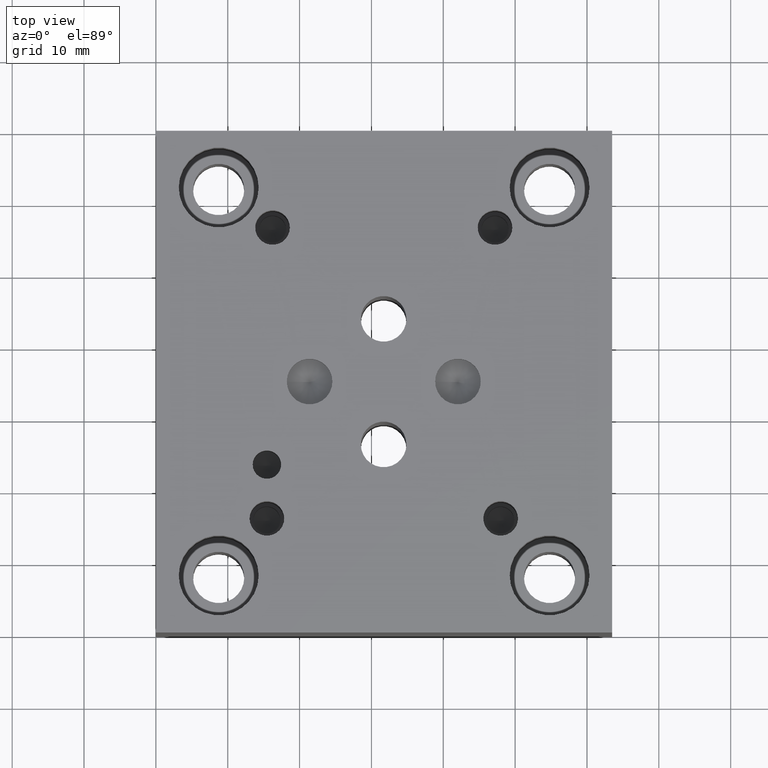
[diagram: clean part render]
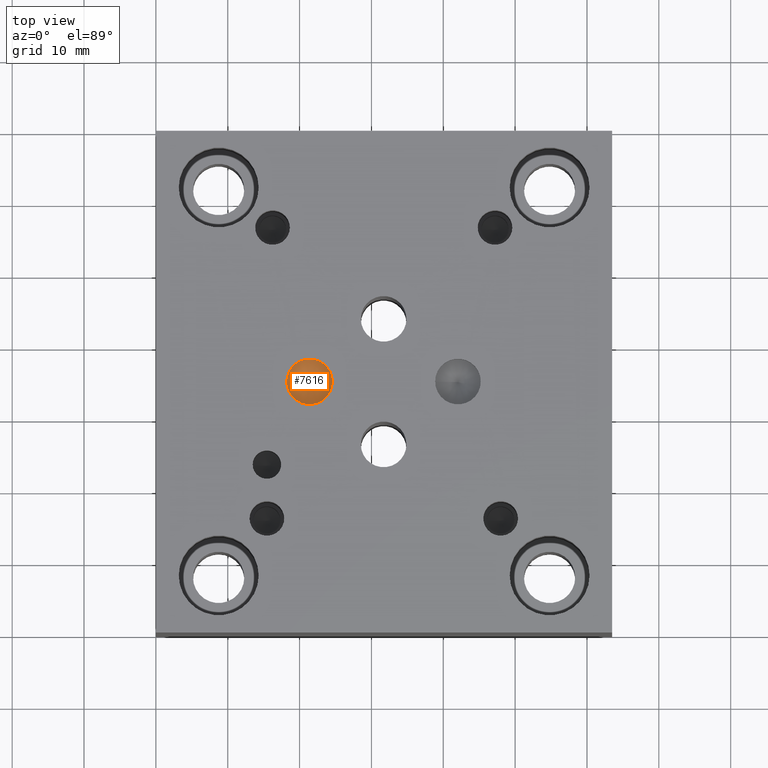
[diagram: same view with one face highlighted and labeled with its STEP entity id]
A machine part, top view. The second image highlights one B-rep face of the part: STEP entity #7616.
In plain terms, the highlighted conical surface has half-angle 60 deg.
Its self-contained STEP definition (entity closure, byte-faithful):
#93=CIRCLE('',#7982,3.175);
#122=CONICAL_SURFACE('',#7981,1.5875,1.0471975511966);
#851=FACE_OUTER_BOUND('',#1295,.T.);
#1295=EDGE_LOOP('',(#6567,#6568,#6569));
#2087=LINE('',#12876,#2858);
#2858=VECTOR('',#9426,1.5875);
#3542=VERTEX_POINT('',#12873);
#3543=VERTEX_POINT('',#12875);
#4561=EDGE_CURVE('',#3542,#3542,#93,.T.);
#4562=EDGE_CURVE('',#3542,#3543,#2087,.T.);
#6567=ORIENTED_EDGE('',*,*,#4561,.T.);
#6568=ORIENTED_EDGE('',*,*,#4562,.T.);
#6569=ORIENTED_EDGE('',*,*,#4562,.F.);
#7616=ADVANCED_FACE('',(#851),#122,.F.);
#7981=AXIS2_PLACEMENT_3D('',#12872,#9422,#9423);
#7982=AXIS2_PLACEMENT_3D('',#12874,#9424,#9425);
#9422=DIRECTION('center_axis',(0.,0.,1.));
#9423=DIRECTION('ref_axis',(1.,0.,0.));
#9424=DIRECTION('center_axis',(0.,0.,1.));
#9425=DIRECTION('ref_axis',(1.,0.,0.));
#9426=DIRECTION('',(0.866025403784439,1.06057523872491E-16,-0.5));
#12872=CARTESIAN_POINT('Origin',(21.3868,34.925,35.3503664476615));
#12873=CARTESIAN_POINT('',(18.2118,34.925,36.26691));
#12874=CARTESIAN_POINT('Origin',(21.3868,34.925,36.26691));
#12875=CARTESIAN_POINT('',(21.3868,34.925,34.4338228953229));
#12876=CARTESIAN_POINT('',(19.7993,34.925,35.3503664476615));